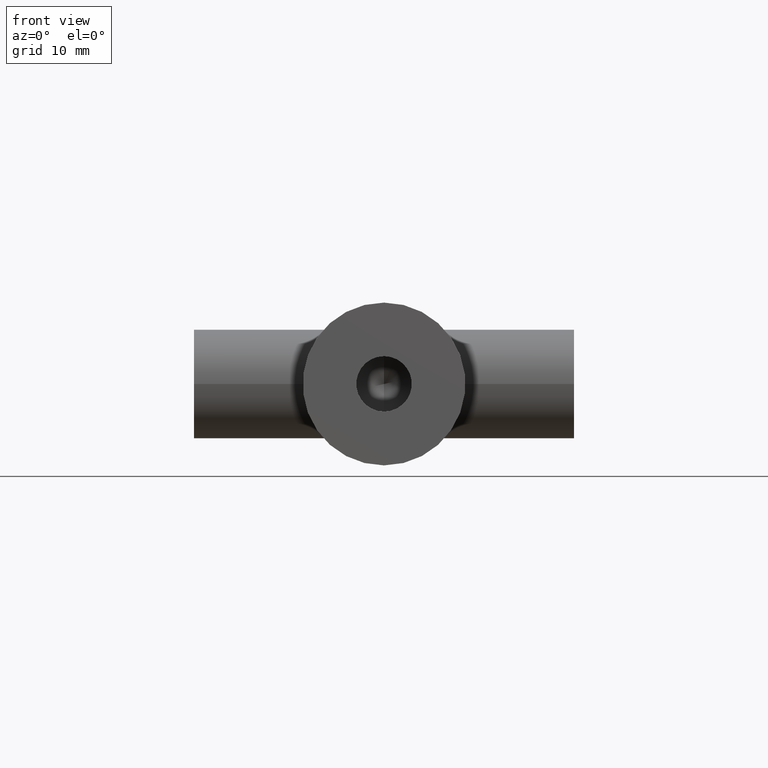
[diagram: clean part render]
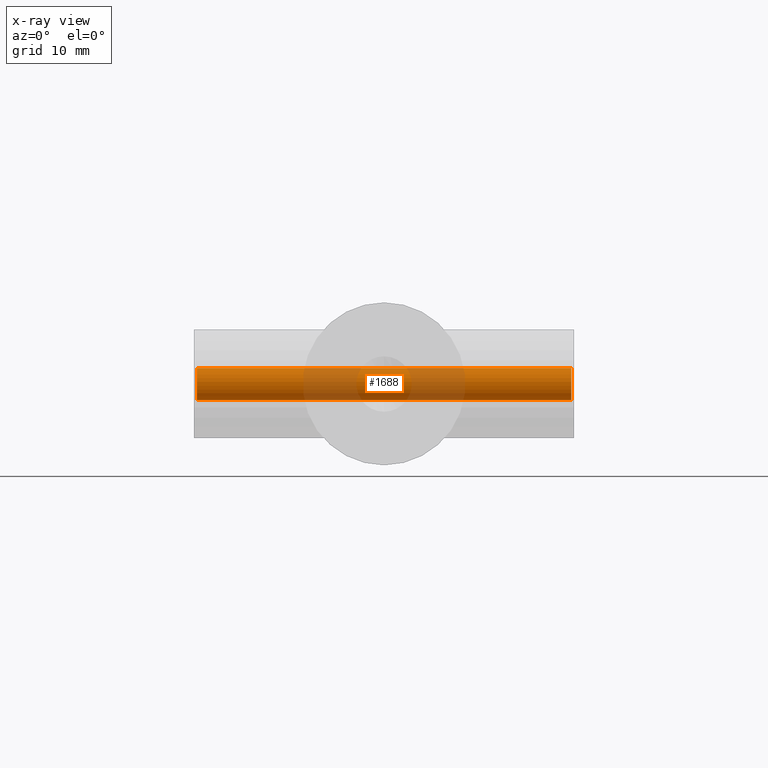
[diagram: x-ray — body ghosted, one internal face saturated and labeled with its STEP entity id]
A machine part, front view, then the same camera in x-ray: the body is ghosted and one INTERNAL B-rep face — a face not visible from any outside direction — is saturated and labeled: STEP entity #1688.
In plain terms, the highlighted cylindrical surface (edge-blend (fillet) strip) has radius 1.5 mm, axis along (-1, 0, 0).
Its self-contained STEP definition (entity closure, byte-faithful):
#319 = AXIS2_PLACEMENT_3D ( 'NONE', #1480, #888, #2973 ) ;
#337 = CARTESIAN_POINT ( 'NONE',  ( 17.25000000000000000, 12.15158163475019000, 1.458973832101402700 ) ) ;
#389 = CIRCLE ( 'NONE', #2980, 1.500000000000001100 ) ;
#391 = LINE ( 'NONE', #2399, #3854 ) ;
#394 = VERTEX_POINT ( 'NONE', #2873 ) ;
#434 = ORIENTED_EDGE ( 'NONE', *, *, #1460, .F. ) ;
#484 = CARTESIAN_POINT ( 'NONE',  ( -17.25000000000000000, 12.50000000000000400, 7.318364664277154900E-016 ) ) ;
#651 = DIRECTION ( 'NONE',  ( -1.000000000000000000, 0.0000000000000000000, 0.0000000000000000000 ) ) ;
#739 = ORIENTED_EDGE ( 'NONE', *, *, #1787, .T. ) ;
#746 = CARTESIAN_POINT ( 'NONE',  ( 17.25000000000000000, 12.50000000000000400, 7.318364664277154900E-016 ) ) ;
#822 = FACE_OUTER_BOUND ( 'NONE', #2989, .T. ) ;
#888 = DIRECTION ( 'NONE',  ( -1.000000000000000000, 0.0000000000000000000, 0.0000000000000000000 ) ) ;
#947 = DIRECTION ( 'NONE',  ( -1.000000000000000000, 0.0000000000000000000, 0.0000000000000000000 ) ) ;
#1113 = VERTEX_POINT ( 'NONE', #3728 ) ;
#1140 = DIRECTION ( 'NONE',  ( 0.0000000000000000000, -0.2322789101665427600, 0.9726492214009340200 ) ) ;
#1435 = CIRCLE ( 'NONE', #3015, 1.500000000000001100 ) ;
#1460 = EDGE_CURVE ( 'NONE', #3351, #2132, #1435, .T. ) ;
#1480 = CARTESIAN_POINT ( 'NONE',  ( 17.25000000000000000, 12.50000000000000400, 7.318364664277154900E-016 ) ) ;
#1656 = DIRECTION ( 'NONE',  ( 1.000000000000000000, 0.0000000000000000000, 0.0000000000000000000 ) ) ;
#1688 = ADVANCED_FACE ( 'NONE', ( #822 ), #2839, .T. ) ;
#1787 = EDGE_CURVE ( 'NONE', #3351, #1113, #2366, .T. ) ;
#2132 = VERTEX_POINT ( 'NONE', #3454 ) ;
#2166 = DIRECTION ( 'NONE',  ( 1.000000000000000000, 0.0000000000000000000, 0.0000000000000000000 ) ) ;
#2366 = LINE ( 'NONE', #337, #2546 ) ;
#2399 = CARTESIAN_POINT ( 'NONE',  ( 17.25000000000000000, 12.84841836524981900, -1.458973832101401400 ) ) ;
#2530 = CARTESIAN_POINT ( 'NONE',  ( 17.25000000000000000, 12.15158163475019000, 1.458973832101403000 ) ) ;
#2533 = ORIENTED_EDGE ( 'NONE', *, *, #2607, .F. ) ;
#2546 = VECTOR ( 'NONE', #947, 1000.000000000000000 ) ;
#2607 = EDGE_CURVE ( 'NONE', #2132, #394, #391, .T. ) ;
#2839 = CYLINDRICAL_SURFACE ( 'NONE', #319, 1.500000000000001100 ) ;
#2873 = CARTESIAN_POINT ( 'NONE',  ( -17.25000000000000000, 12.84841836524981900, -1.458973832101401600 ) ) ;
#2973 = DIRECTION ( 'NONE',  ( 0.0000000000000000000, 0.2322789101665427600, -0.9726492214009340200 ) ) ;
#2980 = AXIS2_PLACEMENT_3D ( 'NONE', #484, #1656, #1140 ) ;
#2989 = EDGE_LOOP ( 'NONE', ( #434, #739, #3422, #2533 ) ) ;
#3015 = AXIS2_PLACEMENT_3D ( 'NONE', #746, #2166, #3722 ) ;
#3351 = VERTEX_POINT ( 'NONE', #2530 ) ;
#3422 = ORIENTED_EDGE ( 'NONE', *, *, #3586, .T. ) ;
#3454 = CARTESIAN_POINT ( 'NONE',  ( 17.25000000000000000, 12.84841836524981900, -1.458973832101401600 ) ) ;
#3586 = EDGE_CURVE ( 'NONE', #1113, #394, #389, .T. ) ;
#3722 = DIRECTION ( 'NONE',  ( 0.0000000000000000000, -0.2322789101665427600, 0.9726492214009340200 ) ) ;
#3728 = CARTESIAN_POINT ( 'NONE',  ( -17.25000000000000000, 12.15158163475019000, 1.458973832101403000 ) ) ;
#3854 = VECTOR ( 'NONE', #651, 1000.000000000000000 ) ;